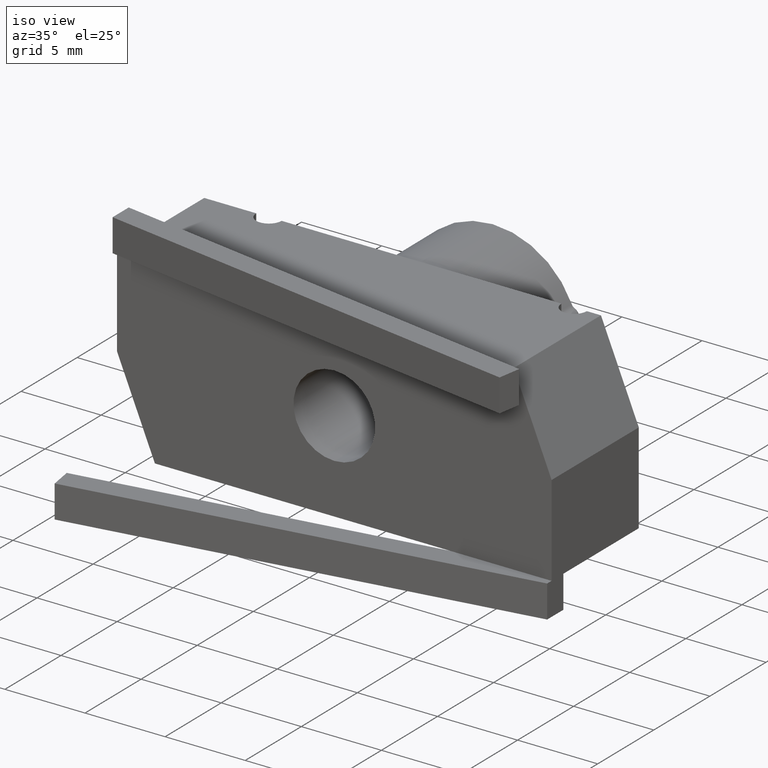
[diagram: clean part render]
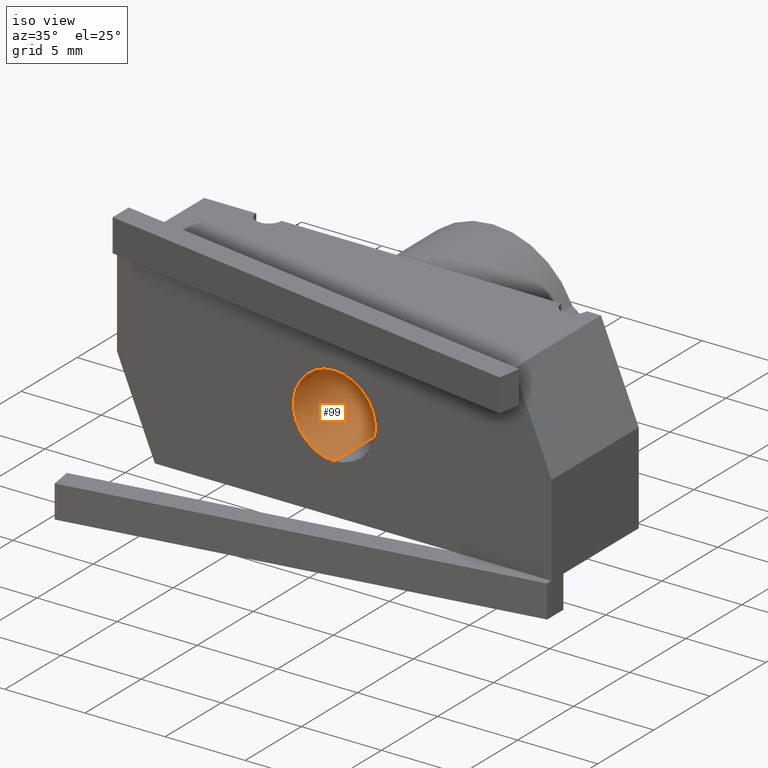
[diagram: same view with one face highlighted and labeled with its STEP entity id]
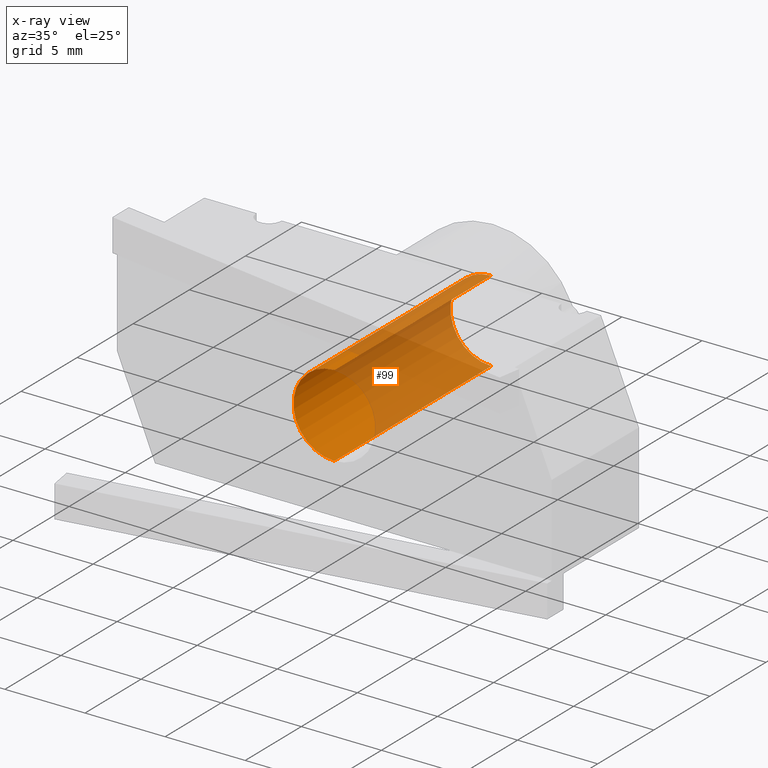
[diagram: x-ray of the same camera — body ghosted, the highlighted face saturated]
A machine part, iso view. The second image highlights one B-rep face of the part: STEP entity #99.
The next image is the same camera in x-ray: the body ghosted, the highlighted face saturated — about 65% of this face is hidden behind the body in this view.
In plain terms, the highlighted cylindrical surface (partial cylindrical patch) has radius 2.5527 mm, axis along (-0, 1, -0).
Its self-contained STEP definition (entity closure, byte-faithful):
#99 = ADVANCED_FACE ( 'NONE', ( #1839 ), #1846, .F. ) ;
#281 = ORIENTED_EDGE ( 'NONE', *, *, #2899, .F. ) ;
#282 = ORIENTED_EDGE ( 'NONE', *, *, #2798, .T. ) ;
#488 = ORIENTED_EDGE ( 'NONE', *, *, #2897, .F. ) ;
#493 = ORIENTED_EDGE ( 'NONE', *, *, #2796, .T. ) ;
#586 = DIRECTION ( 'NONE',  ( 0.0000000000000000000, 0.0000000000000000000, 1.000000000000000000 ) ) ;
#591 = CARTESIAN_POINT ( 'NONE',  ( 0.0000000000000000000, 0.2450000000000000000, 0.0000000000000000000 ) ) ;
#592 = DIRECTION ( 'NONE',  ( -0.0000000000000000000, 1.000000000000000000, -0.0000000000000000000 ) ) ;
#1025 = CARTESIAN_POINT ( 'NONE',  ( 0.0000000000000000000, 0.2450000000000000000, 0.1004999999999996900 ) ) ;
#1026 = DIRECTION ( 'NONE',  ( -0.0000000000000000000, 1.000000000000000000, -0.0000000000000000000 ) ) ;
#1027 = CARTESIAN_POINT ( 'NONE',  ( 0.0000000000000000000, -0.3059999999999999400, 0.0000000000000000000 ) ) ;
#1029 = DIRECTION ( 'NONE',  ( -0.0000000000000000000, 1.000000000000000000, -0.0000000000000000000 ) ) ;
#1030 = DIRECTION ( 'NONE',  ( 0.0000000000000000000, 0.0000000000000000000, 1.000000000000000000 ) ) ;
#1153 = LINE ( 'NONE', #1025, #1154 ) ;
#1154 = VECTOR ( 'NONE', #1026, 39.37007874015748100 ) ;
#1158 = CIRCLE ( 'NONE', #1253, 0.1004999999999998700 ) ;
#1251 = AXIS2_PLACEMENT_3D ( 'NONE', #2320, #2321, #2322 ) ;
#1253 = AXIS2_PLACEMENT_3D ( 'NONE', #1027, #1029, #1030 ) ;
#1320 = LINE ( 'NONE', #2323, #1338 ) ;
#1337 = CIRCLE ( 'NONE', #1251, 0.1004999999999995200 ) ;
#1338 = VECTOR ( 'NONE', #2326, 39.37007874015748100 ) ;
#1839 = FACE_OUTER_BOUND ( 'NONE', #3580, .T. ) ;
#1846 = CYLINDRICAL_SURFACE ( 'NONE', #3160, 0.1004999999999996900 ) ;
#2095 = VERTEX_POINT ( 'NONE', #3644 ) ;
#2110 = VERTEX_POINT ( 'NONE', #3656 ) ;
#2116 = VERTEX_POINT ( 'NONE', #3662 ) ;
#2167 = VERTEX_POINT ( 'NONE', #3709 ) ;
#2320 = CARTESIAN_POINT ( 'NONE',  ( 0.0000000000000000000, 0.2450000000000000200, 0.0000000000000000000 ) ) ;
#2321 = DIRECTION ( 'NONE',  ( -0.0000000000000000000, 1.000000000000000000, -0.0000000000000000000 ) ) ;
#2322 = DIRECTION ( 'NONE',  ( 0.0000000000000000000, 0.0000000000000000000, 1.000000000000000000 ) ) ;
#2323 = CARTESIAN_POINT ( 'NONE',  ( 1.230770033143086200E-017, 0.2450000000000000000, -0.1004999999999996900 ) ) ;
#2326 = DIRECTION ( 'NONE',  ( -0.0000000000000000000, 1.000000000000000000, -0.0000000000000000000 ) ) ;
#2796 = EDGE_CURVE ( 'NONE', #2116, #2110, #1337, .T. ) ;
#2798 = EDGE_CURVE ( 'NONE', #2095, #2116, #1320, .T. ) ;
#2897 = EDGE_CURVE ( 'NONE', #2167, #2110, #1153, .T. ) ;
#2899 = EDGE_CURVE ( 'NONE', #2095, #2167, #1158, .T. ) ;
#3160 = AXIS2_PLACEMENT_3D ( 'NONE', #591, #592, #586 ) ;
#3580 = EDGE_LOOP ( 'NONE', ( #281, #282, #493, #488 ) ) ;
#3644 = CARTESIAN_POINT ( 'NONE',  ( 1.230770033143088300E-017, -0.3059999999999999400, -0.1004999999999998500 ) ) ;
#3656 = CARTESIAN_POINT ( 'NONE',  ( 0.0000000000000000000, 0.2450000000000000200, 0.1004999999999995200 ) ) ;
#3662 = CARTESIAN_POINT ( 'NONE',  ( 1.230770033143084900E-017, 0.2450000000000000200, -0.1004999999999995200 ) ) ;
#3709 = CARTESIAN_POINT ( 'NONE',  ( 0.0000000000000000000, -0.3059999999999999400, 0.1004999999999998700 ) ) ;